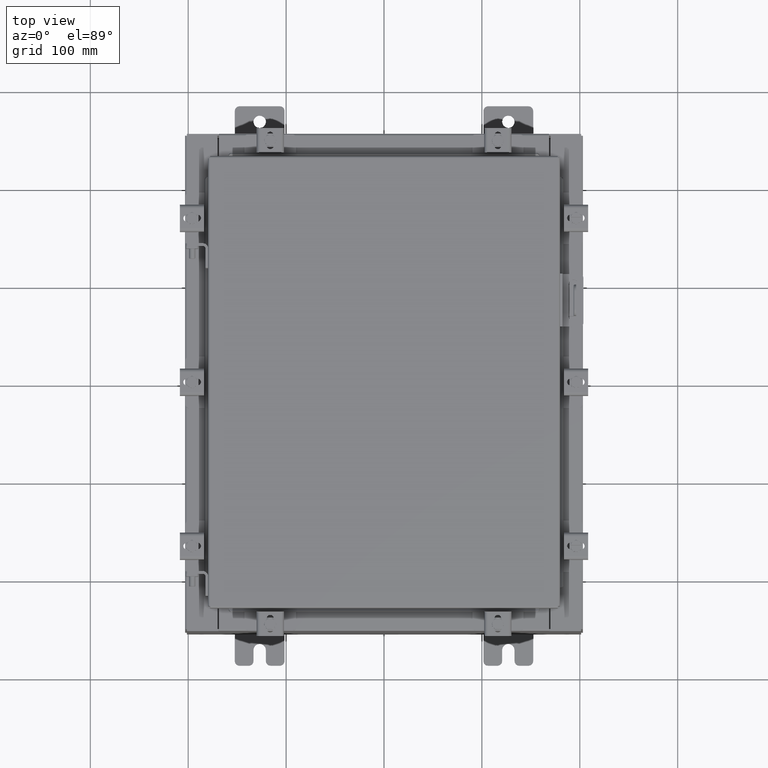
[diagram: clean part render]
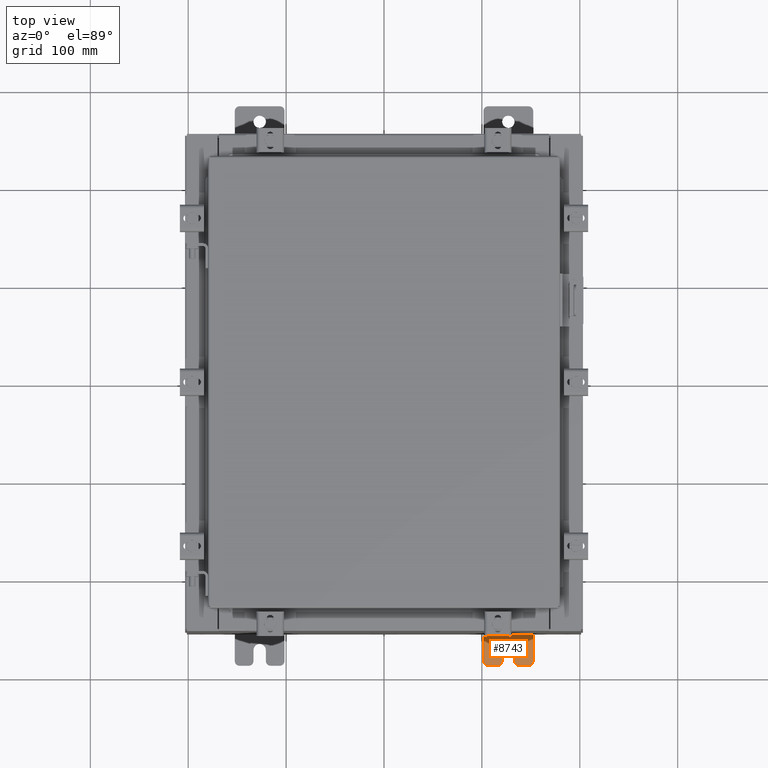
[diagram: same view with one face highlighted and labeled with its STEP entity id]
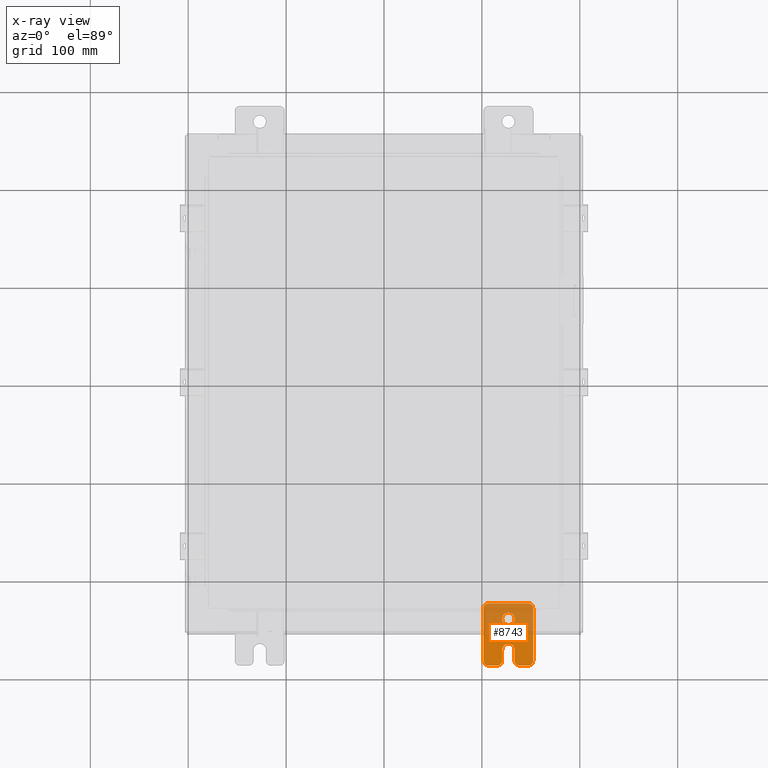
[diagram: x-ray of the same camera — body ghosted, the highlighted face saturated]
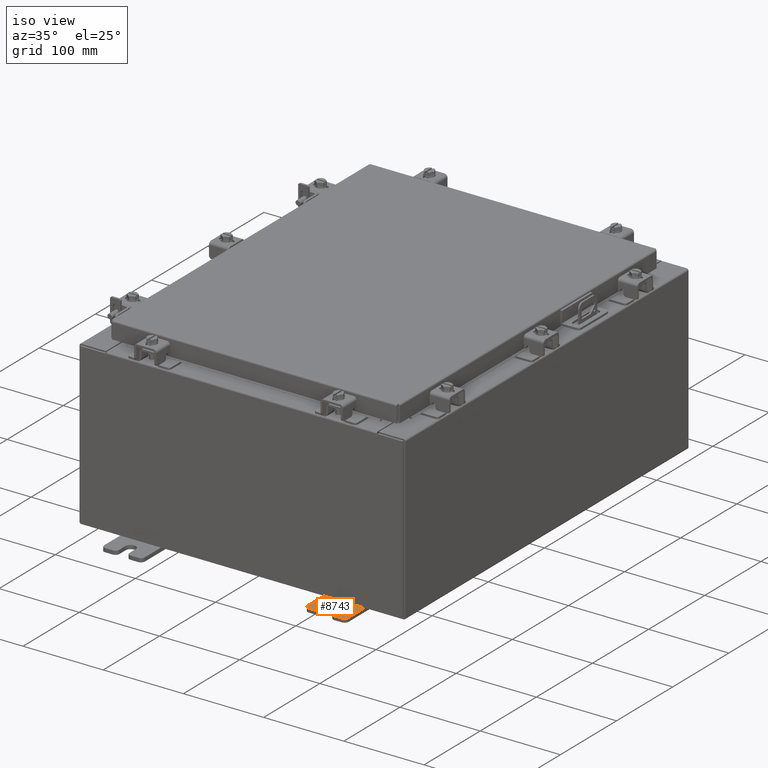
[diagram: same view with one face highlighted and labeled with its STEP entity id]
A machine part, top view. The second image highlights one B-rep face of the part: STEP entity #8743.
The next image is the same camera in x-ray: the body ghosted, the highlighted face saturated — about 53% of this face is hidden behind the body in this view.
A second angle (iso view) of the same face is appended — the face is thin or edge-on in the first view.
In plain terms, the highlighted planar face has unit normal (0, 0, 1).
Its self-contained STEP definition (entity closure, byte-faithful):
#2 = LINE ( 'NONE', #602, #8674 ) ;
#281 = CARTESIAN_POINT ( 'NONE',  ( 0.0000000000000000000, -0.6249999999999992200, 0.2500000000000005000 ) ) ;
#351 = LINE ( 'NONE', #4134, #3859 ) ;
#399 = CARTESIAN_POINT ( 'NONE',  ( 0.0000000000000000000, -1.250000000000005300, -0.8100000000000047200 ) ) ;
#431 = ORIENTED_EDGE ( 'NONE', *, *, #16356, .T. ) ;
#596 = CARTESIAN_POINT ( 'NONE',  ( 0.0000000000000000000, 1.059999999999996300, 0.8099999999999938400 ) ) ;
#602 = CARTESIAN_POINT ( 'NONE',  ( 4.780733988912460100E-016, -0.6249999999999993300, -0.2499999999999993900 ) ) ;
#720 = EDGE_CURVE ( 'NONE', #8545, #16277, #351, .T. ) ;
#735 = VERTEX_POINT ( 'NONE', #4651 ) ;
#757 = VERTEX_POINT ( 'NONE', #1372 ) ;
#805 = EDGE_LOOP ( 'NONE', ( #431, #11579, #3899, #2526, #20393, #20304, #2692, #20678, #8685, #6467, #13519, #7087, #15628, #6920 ) ) ;
#914 = DIRECTION ( 'NONE',  ( 1.000000000000000000, 0.0000000000000000000, -0.0000000000000000000 ) ) ;
#1165 = LINE ( 'NONE', #11175, #9843 ) ;
#1308 = PLANE ( 'NONE',  #21157 ) ;
#1372 = CARTESIAN_POINT ( 'NONE',  ( 0.0000000000000000000, -1.060000000000004500, -1.000000000000006400 ) ) ;
#1468 = DIRECTION ( 'NONE',  ( 1.000000000000000000, 0.0000000000000000000, -0.0000000000000000000 ) ) ;
#1661 = CARTESIAN_POINT ( 'NONE',  ( 0.0000000000000000000, -1.250000000000004700, -0.4400000000000002200 ) ) ;
#2321 = DIRECTION ( 'NONE',  ( 0.0000000000000000000, 0.0000000000000000000, -1.000000000000000000 ) ) ;
#2338 = DIRECTION ( 'NONE',  ( 1.000000000000000000, -0.0000000000000000000, -5.163192708025532000E-017 ) ) ;
#2526 = ORIENTED_EDGE ( 'NONE', *, *, #20460, .T. ) ;
#2551 = CARTESIAN_POINT ( 'NONE',  ( 3.910348609313009100E-016, 0.6249999999999992200, -0.2499999999999999200 ) ) ;
#2592 = EDGE_CURVE ( 'NONE', #735, #18601, #2, .T. ) ;
#2692 = ORIENTED_EDGE ( 'NONE', *, *, #2592, .T. ) ;
#2695 = EDGE_CURVE ( 'NONE', #7529, #14294, #12220, .T. ) ;
#3825 = DIRECTION ( 'NONE',  ( 1.000000000000000000, 0.0000000000000000000, -0.0000000000000000000 ) ) ;
#3859 = VECTOR ( 'NONE', #4973, 39.37007874015748100 ) ;
#3899 = ORIENTED_EDGE ( 'NONE', *, *, #5567, .T. ) ;
#4134 = CARTESIAN_POINT ( 'NONE',  ( 6.829619984160658000E-017, -1.250000000000003800, 0.2500000000000005000 ) ) ;
#4205 = DIRECTION ( 'NONE',  ( 0.0000000000000000000, -1.639108796198553600E-015, -1.000000000000000000 ) ) ;
#4622 = CIRCLE ( 'NONE', #11129, 0.1900000000000011100 ) ;
#4651 = CARTESIAN_POINT ( 'NONE',  ( 4.780733988912460100E-016, -0.6249999999999993300, -0.2499999999999998600 ) ) ;
#4682 = CARTESIAN_POINT ( 'NONE',  ( 0.0000000000000000000, -1.060000000000001200, 0.9999999999999988900 ) ) ;
#4752 = CIRCLE ( 'NONE', #18093, 0.2499999999999999200 ) ;
#4807 = DIRECTION ( 'NONE',  ( 1.000000000000000000, 0.0000000000000000000, -0.0000000000000000000 ) ) ;
#4973 = DIRECTION ( 'NONE',  ( 6.556435184794182400E-016, 1.000000000000000000, 0.0000000000000000000 ) ) ;
#5203 = ORIENTED_EDGE ( 'NONE', *, *, #11632, .F. ) ;
#5378 = VERTEX_POINT ( 'NONE', #399 ) ;
#5393 = FACE_OUTER_BOUND ( 'NONE', #805, .T. ) ;
#5416 = VECTOR ( 'NONE', #9133, 39.37007874015748100 ) ;
#5476 = EDGE_CURVE ( 'NONE', #10470, #10195, #14445, .T. ) ;
#5567 = EDGE_CURVE ( 'NONE', #19944, #11925, #1165, .T. ) ;
#5676 = AXIS2_PLACEMENT_3D ( 'NONE', #12756, #2338, #14497 ) ;
#6467 = ORIENTED_EDGE ( 'NONE', *, *, #12362, .T. ) ;
#6592 = VECTOR ( 'NONE', #12597, 39.37007874015748100 ) ;
#6795 = EDGE_CURVE ( 'NONE', #20083, #5378, #15749, .T. ) ;
#6920 = ORIENTED_EDGE ( 'NONE', *, *, #16001, .T. ) ;
#7085 = AXIS2_PLACEMENT_3D ( 'NONE', #11314, #914, #13040 ) ;
#7087 = ORIENTED_EDGE ( 'NONE', *, *, #2695, .T. ) ;
#7134 = CIRCLE ( 'NONE', #12140, 0.1900000000000011100 ) ;
#7529 = VERTEX_POINT ( 'NONE', #21874 ) ;
#7542 = EDGE_CURVE ( 'NONE', #14294, #20218, #14698, .T. ) ;
#7772 = AXIS2_PLACEMENT_3D ( 'NONE', #7783, #19954, #9536 ) ;
#7783 = CARTESIAN_POINT ( 'NONE',  ( 0.0000000000000000000, -1.060000000000002100, 0.4400000000000016700 ) ) ;
#7876 = CARTESIAN_POINT ( 'NONE',  ( 4.039428427013647300E-016, 0.6249999999999992200, -9.783840404509077400E-018 ) ) ;
#7897 = CIRCLE ( 'NONE', #7772, 0.1900000000000011400 ) ;
#8040 = EDGE_CURVE ( 'NONE', #757, #7529, #10068, .T. ) ;
#8360 = EDGE_CURVE ( 'NONE', #18762, #19944, #4622, .T. ) ;
#8391 = FACE_BOUND ( 'NONE', #17084, .T. ) ;
#8529 = AXIS2_PLACEMENT_3D ( 'NONE', #20323, #9938, #22090 ) ;
#8545 = VERTEX_POINT ( 'NONE', #21663 ) ;
#8674 = VECTOR ( 'NONE', #11017, 39.37007874015748100 ) ;
#8685 = ORIENTED_EDGE ( 'NONE', *, *, #6795, .T. ) ;
#8743 = ADVANCED_FACE ( 'NONE', ( #8391, #5393 ), #1308, .T. ) ;
#9096 = ORIENTED_EDGE ( 'NONE', *, *, #5476, .F. ) ;
#9133 = DIRECTION ( 'NONE',  ( 0.0000000000000000000, 1.000000000000000000, -1.639108796198558100E-015 ) ) ;
#9188 = DIRECTION ( 'NONE',  ( 1.000000000000000000, 0.0000000000000000000, -0.0000000000000000000 ) ) ;
#9536 = DIRECTION ( 'NONE',  ( 0.0000000000000000000, 0.0000000000000000000, -1.000000000000000000 ) ) ;
#9642 = DIRECTION ( 'NONE',  ( -5.163192708025533800E-017, 0.0000000000000000000, -1.000000000000000000 ) ) ;
#9656 = AXIS2_PLACEMENT_3D ( 'NONE', #14244, #3825, #15982 ) ;
#9843 = VECTOR ( 'NONE', #21573, 39.37007874015748100 ) ;
#9938 = DIRECTION ( 'NONE',  ( -1.000000000000000000, 6.523827964459549700E-016, 5.163192708025532000E-017 ) ) ;
#10016 = EDGE_CURVE ( 'NONE', #16277, #735, #20044, .T. ) ;
#10068 = LINE ( 'NONE', #12580, #5416 ) ;
#10195 = VERTEX_POINT ( 'NONE', #2551 ) ;
#10470 = VERTEX_POINT ( 'NONE', #17125 ) ;
#10740 = CARTESIAN_POINT ( 'NONE',  ( 0.0000000000000000000, -1.250000000000003100, 0.4400000000000020000 ) ) ;
#11017 = DIRECTION ( 'NONE',  ( -6.556435184794182400E-016, -1.000000000000000000, -1.639108796198545600E-016 ) ) ;
#11129 = AXIS2_PLACEMENT_3D ( 'NONE', #19605, #9188, #21366 ) ;
#11175 = CARTESIAN_POINT ( 'NONE',  ( 0.0000000000000000000, -1.250000000000002200, 0.9999999999999992200 ) ) ;
#11314 = CARTESIAN_POINT ( 'NONE',  ( 0.0000000000000000000, 1.059999999999993600, -0.8100000000000089400 ) ) ;
#11473 = DIRECTION ( 'NONE',  ( 0.0000000000000000000, 1.639108796198553600E-015, 1.000000000000000000 ) ) ;
#11579 = ORIENTED_EDGE ( 'NONE', *, *, #8360, .T. ) ;
#11632 = EDGE_CURVE ( 'NONE', #10195, #10470, #4752, .T. ) ;
#11874 = CARTESIAN_POINT ( 'NONE',  ( 0.0000000000000000000, -1.060000000000004100, -0.8100000000000050500 ) ) ;
#11925 = VERTEX_POINT ( 'NONE', #10740 ) ;
#12140 = AXIS2_PLACEMENT_3D ( 'NONE', #11874, #1468, #13589 ) ;
#12220 = CIRCLE ( 'NONE', #7085, 0.1900000000000011100 ) ;
#12362 = EDGE_CURVE ( 'NONE', #5378, #757, #7134, .T. ) ;
#12580 = CARTESIAN_POINT ( 'NONE',  ( 0.0000000000000000000, -1.250000000000005600, -1.000000000000006200 ) ) ;
#12597 = DIRECTION ( 'NONE',  ( 0.0000000000000000000, -1.000000000000000000, 1.639108796198558100E-015 ) ) ;
#12732 = DIRECTION ( 'NONE',  ( 1.000000000000000000, 0.0000000000000000000, -0.0000000000000000000 ) ) ;
#12756 = CARTESIAN_POINT ( 'NONE',  ( 4.039428427013647300E-016, 0.6249999999999992200, -9.783840404509077400E-018 ) ) ;
#13040 = DIRECTION ( 'NONE',  ( 0.0000000000000000000, 0.0000000000000000000, -1.000000000000000000 ) ) ;
#13519 = ORIENTED_EDGE ( 'NONE', *, *, #8040, .T. ) ;
#13589 = DIRECTION ( 'NONE',  ( 0.0000000000000000000, 0.0000000000000000000, -1.000000000000000000 ) ) ;
#13991 = CARTESIAN_POINT ( 'NONE',  ( 0.0000000000000000000, 1.249999999999994700, -0.8100000000000092700 ) ) ;
#14144 = VECTOR ( 'NONE', #11473, 39.37007874015748100 ) ;
#14244 = CARTESIAN_POINT ( 'NONE',  ( 0.0000000000000000000, -1.060000000000003400, -0.4400000000000005000 ) ) ;
#14294 = VERTEX_POINT ( 'NONE', #13991 ) ;
#14445 = CIRCLE ( 'NONE', #5676, 0.2499999999999999200 ) ;
#14497 = DIRECTION ( 'NONE',  ( -5.163192708025533800E-017, 0.0000000000000000000, -1.000000000000000000 ) ) ;
#14698 = LINE ( 'NONE', #16621, #14144 ) ;
#15182 = CARTESIAN_POINT ( 'NONE',  ( 0.0000000000000000000, -1.250000000000002400, 0.8099999999999980500 ) ) ;
#15208 = CARTESIAN_POINT ( 'NONE',  ( 0.0000000000000000000, 0.0000000000000000000, 0.0000000000000000000 ) ) ;
#15402 = AXIS2_PLACEMENT_3D ( 'NONE', #596, #12732, #2321 ) ;
#15628 = ORIENTED_EDGE ( 'NONE', *, *, #7542, .T. ) ;
#15749 = LINE ( 'NONE', #21525, #19834 ) ;
#15864 = CARTESIAN_POINT ( 'NONE',  ( 0.0000000000000000000, 1.249999999999997300, 0.8099999999999935000 ) ) ;
#15982 = DIRECTION ( 'NONE',  ( 0.0000000000000000000, 0.0000000000000000000, -1.000000000000000000 ) ) ;
#16001 = EDGE_CURVE ( 'NONE', #20218, #16229, #22395, .T. ) ;
#16229 = VERTEX_POINT ( 'NONE', #17447 ) ;
#16277 = VERTEX_POINT ( 'NONE', #281 ) ;
#16356 = EDGE_CURVE ( 'NONE', #16229, #18762, #21000, .T. ) ;
#16621 = CARTESIAN_POINT ( 'NONE',  ( 0.0000000000000000000, 1.249999999999994200, -1.000000000000010400 ) ) ;
#16968 = DIRECTION ( 'NONE',  ( -0.0000000000000000000, 0.0000000000000000000, -1.000000000000000000 ) ) ;
#17084 = EDGE_LOOP ( 'NONE', ( #5203, #9096 ) ) ;
#17125 = CARTESIAN_POINT ( 'NONE',  ( 4.168508244714285900E-016, 0.6249999999999992200, 0.2499999999999999200 ) ) ;
#17447 = CARTESIAN_POINT ( 'NONE',  ( 0.0000000000000000000, 1.059999999999996500, 0.9999999999999953400 ) ) ;
#17914 = CIRCLE ( 'NONE', #9656, 0.1900000000000011100 ) ;
#18093 = AXIS2_PLACEMENT_3D ( 'NONE', #7876, #20033, #9642 ) ;
#18186 = CARTESIAN_POINT ( 'NONE',  ( 1.928684683526964400E-016, -1.060000000000003400, -0.2499999999999994400 ) ) ;
#18419 = EDGE_CURVE ( 'NONE', #18601, #20083, #17914, .T. ) ;
#18601 = VERTEX_POINT ( 'NONE', #18186 ) ;
#18762 = VERTEX_POINT ( 'NONE', #4682 ) ;
#19475 = CARTESIAN_POINT ( 'NONE',  ( 0.0000000000000000000, 1.249999999999997600, 0.9999999999999951200 ) ) ;
#19605 = CARTESIAN_POINT ( 'NONE',  ( 0.0000000000000000000, -1.060000000000001600, 0.8099999999999978300 ) ) ;
#19834 = VECTOR ( 'NONE', #4205, 39.37007874015748100 ) ;
#19944 = VERTEX_POINT ( 'NONE', #15182 ) ;
#19954 = DIRECTION ( 'NONE',  ( 1.000000000000000000, 0.0000000000000000000, -0.0000000000000000000 ) ) ;
#20033 = DIRECTION ( 'NONE',  ( 1.000000000000000000, -0.0000000000000000000, -5.163192708025532000E-017 ) ) ;
#20044 = CIRCLE ( 'NONE', #8529, 0.2499999999999999200 ) ;
#20083 = VERTEX_POINT ( 'NONE', #1661 ) ;
#20218 = VERTEX_POINT ( 'NONE', #15864 ) ;
#20304 = ORIENTED_EDGE ( 'NONE', *, *, #10016, .T. ) ;
#20323 = CARTESIAN_POINT ( 'NONE',  ( 4.780733988912460100E-016, -0.6249999999999993300, 5.858939755051854500E-017 ) ) ;
#20393 = ORIENTED_EDGE ( 'NONE', *, *, #720, .T. ) ;
#20460 = EDGE_CURVE ( 'NONE', #11925, #8545, #7897, .T. ) ;
#20678 = ORIENTED_EDGE ( 'NONE', *, *, #18419, .T. ) ;
#21000 = LINE ( 'NONE', #19475, #6592 ) ;
#21157 = AXIS2_PLACEMENT_3D ( 'NONE', #15208, #4807, #16968 ) ;
#21366 = DIRECTION ( 'NONE',  ( 0.0000000000000000000, 0.0000000000000000000, -1.000000000000000000 ) ) ;
#21525 = CARTESIAN_POINT ( 'NONE',  ( 0.0000000000000000000, -1.250000000000002200, 0.9999999999999992200 ) ) ;
#21573 = DIRECTION ( 'NONE',  ( 0.0000000000000000000, -1.639108796198553600E-015, -1.000000000000000000 ) ) ;
#21663 = CARTESIAN_POINT ( 'NONE',  ( 1.928684683526972300E-016, -1.060000000000002100, 0.2500000000000005000 ) ) ;
#21874 = CARTESIAN_POINT ( 'NONE',  ( 0.0000000000000000000, 1.059999999999993400, -1.000000000000010000 ) ) ;
#22090 = DIRECTION ( 'NONE',  ( -6.523827964459551700E-016, -1.000000000000000000, 0.0000000000000000000 ) ) ;
#22395 = CIRCLE ( 'NONE', #15402, 0.1900000000000011100 ) ;